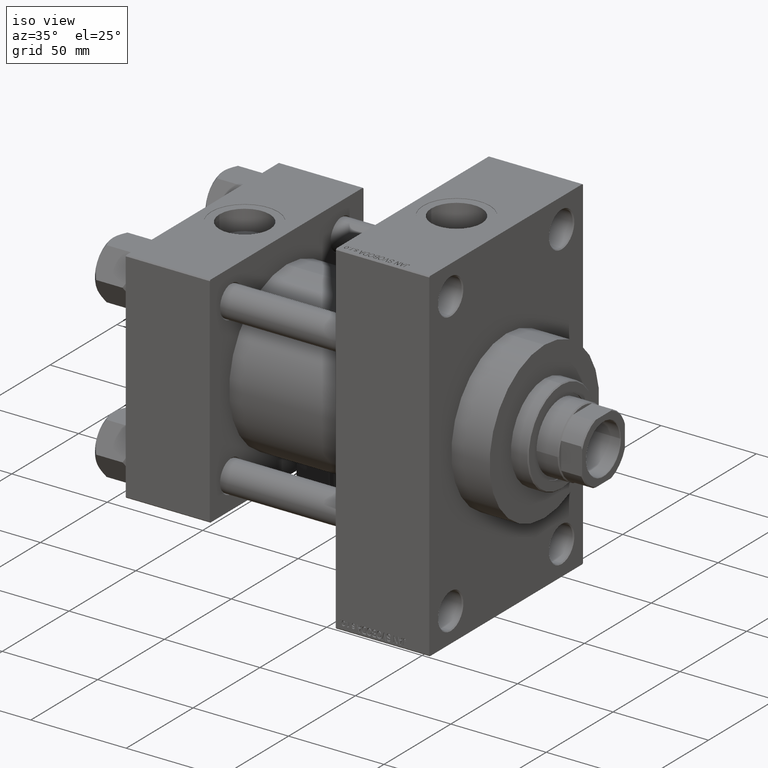
[diagram: clean part render]
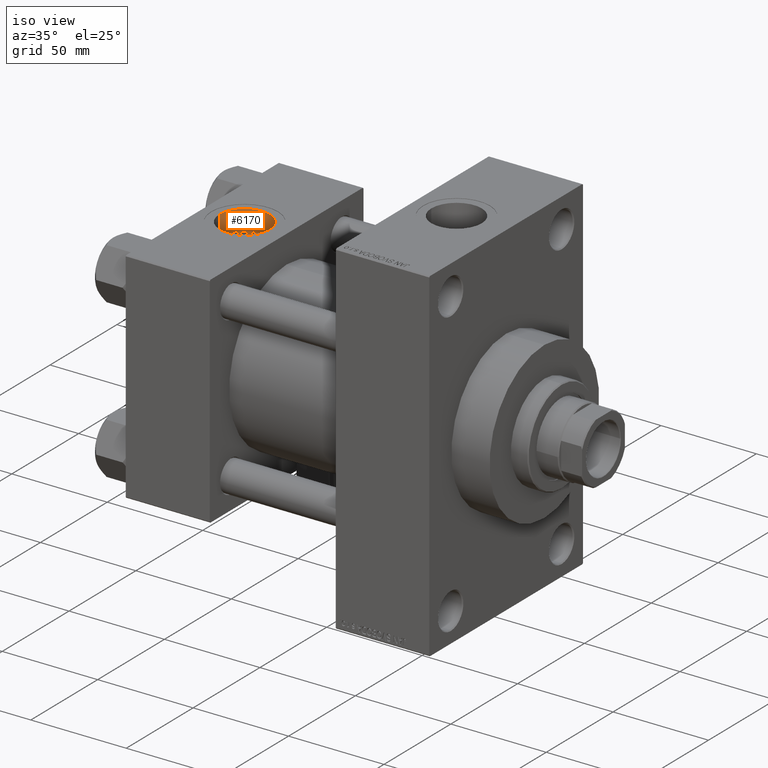
[diagram: same view with one face highlighted and labeled with its STEP entity id]
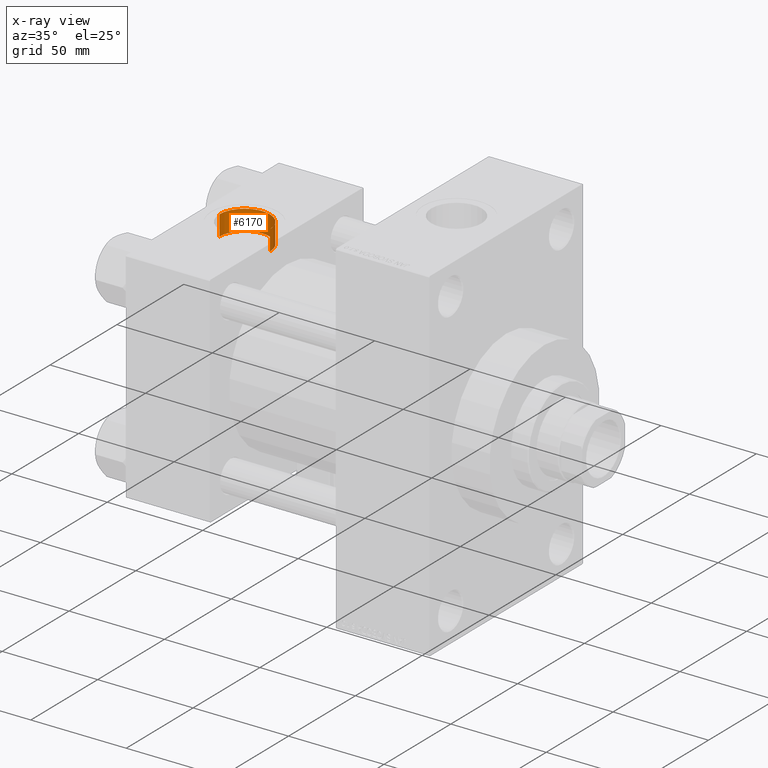
[diagram: x-ray of the same camera — body ghosted, the highlighted face saturated]
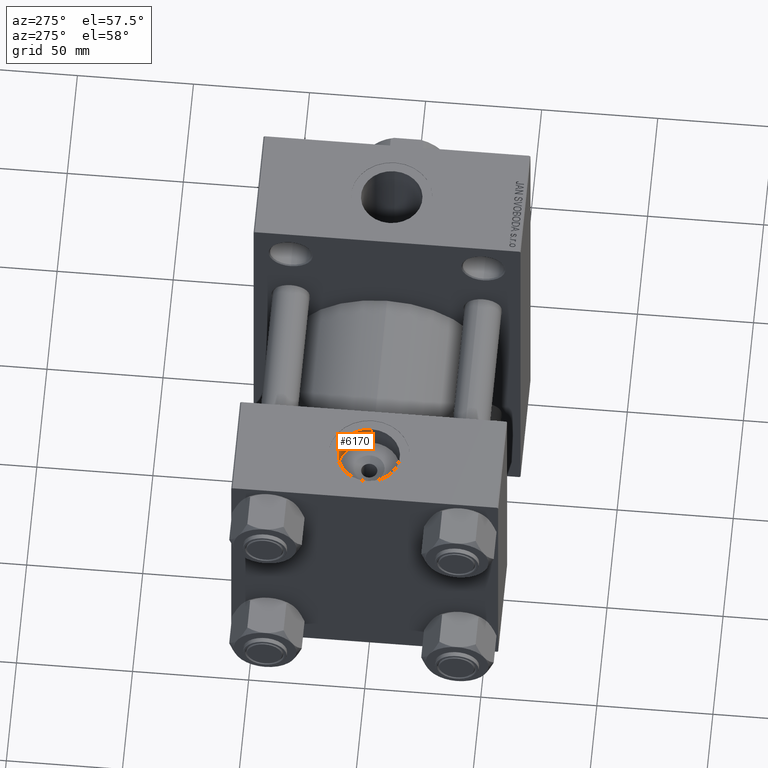
[diagram: same view with one face highlighted and labeled with its STEP entity id]
A machine part, iso view. The second image highlights one B-rep face of the part: STEP entity #6170.
The next image is the same camera in x-ray: the body ghosted, the highlighted face saturated — about 0% of this face is hidden behind the body in this view.
A second angle (auxiliary view) of the same face is appended — the face is thin or edge-on in the first view.
In plain terms, the highlighted cylindrical surface (edge-blend (fillet) strip) has radius 13.22 mm, axis along (0, 0, 1).
Its self-contained STEP definition (entity closure, byte-faithful):
#910 = DIRECTION ( 'NONE',  ( -0.000000000000000000, -0.000000000000000000, 1.000000000000000000 ) ) ;
#4264 = CARTESIAN_POINT ( 'NONE',  ( 22.00000000000000000, -8.673617379884035472E-15, 46.70000000000000284 ) ) ;
#5011 = FACE_OUTER_BOUND ( 'NONE', #48478, .T. ) ;
#5195 = LINE ( 'NONE', #35709, #39532 ) ;
#5260 = DIRECTION ( 'NONE',  ( -0.000000000000000000, -0.000000000000000000, 1.000000000000000000 ) ) ;
#5772 = CYLINDRICAL_SURFACE ( 'NONE', #39141, 13.22000000000000242 ) ;
#6170 = ADVANCED_FACE ( 'NONE', ( #5011 ), #5772, .F. ) ;
#7314 = DIRECTION ( 'NONE',  ( 1.000000000000000000, 0.000000000000000000, 0.000000000000000000 ) ) ;
#9356 = CARTESIAN_POINT ( 'NONE',  ( 8.779999999999994031, -7.054634311411234321E-15, 57.30000000000000426 ) ) ;
#9732 = CIRCLE ( 'NONE', #12840, 13.22000000000000242 ) ;
#11857 = AXIS2_PLACEMENT_3D ( 'NONE', #4264, #22938, #15615 ) ;
#12590 = EDGE_CURVE ( 'NONE', #14276, #42667, #19927, .T. ) ;
#12840 = AXIS2_PLACEMENT_3D ( 'NONE', #26498, #41839, #7314 ) ;
#14276 = VERTEX_POINT ( 'NONE', #34371 ) ;
#15615 = DIRECTION ( 'NONE',  ( 1.000000000000000000, 0.000000000000000000, 0.000000000000000000 ) ) ;
#17393 = DIRECTION ( 'NONE',  ( -0.000000000000000000, -0.000000000000000000, 1.000000000000000000 ) ) ;
#19927 = CIRCLE ( 'NONE', #11857, 13.22000000000000242 ) ;
#20132 = EDGE_CURVE ( 'NONE', #26640, #33808, #9732, .T. ) ;
#21355 = ORIENTED_EDGE ( 'NONE', *, *, #30160, .T. ) ;
#22938 = DIRECTION ( 'NONE',  ( 0.000000000000000000, 0.000000000000000000, 1.000000000000000000 ) ) ;
#26498 = CARTESIAN_POINT ( 'NONE',  ( 22.00000000000000000, -8.673617379884035472E-15, 57.30000000000000426 ) ) ;
#26640 = VERTEX_POINT ( 'NONE', #28436 ) ;
#28107 = ORIENTED_EDGE ( 'NONE', *, *, #12590, .F. ) ;
#28436 = CARTESIAN_POINT ( 'NONE',  ( 35.21999999999999886, -8.673617379884035472E-15, 57.30000000000000426 ) ) ;
#28982 = DIRECTION ( 'NONE',  ( 1.000000000000000000, 0.000000000000000000, 0.000000000000000000 ) ) ;
#29799 = ORIENTED_EDGE ( 'NONE', *, *, #34171, .F. ) ;
#30160 = EDGE_CURVE ( 'NONE', #14276, #26640, #44087, .T. ) ;
#32030 = CARTESIAN_POINT ( 'NONE',  ( 35.21999999999999886, -8.673617379884035472E-15, 46.70000000000000284 ) ) ;
#32256 = CARTESIAN_POINT ( 'NONE',  ( 22.00000000000000000, -8.673617379884035472E-15, 46.70000000000000284 ) ) ;
#33240 = CARTESIAN_POINT ( 'NONE',  ( 8.779999999999994031, -7.054634311411234321E-15, 46.70000000000000284 ) ) ;
#33808 = VERTEX_POINT ( 'NONE', #9356 ) ;
#34171 = EDGE_CURVE ( 'NONE', #42667, #33808, #5195, .T. ) ;
#34371 = CARTESIAN_POINT ( 'NONE',  ( 35.21999999999999886, -8.673617379884035472E-15, 46.70000000000000284 ) ) ;
#35709 = CARTESIAN_POINT ( 'NONE',  ( 8.779999999999994031, -7.054634311411234321E-15, 46.70000000000000284 ) ) ;
#36971 = VECTOR ( 'NONE', #17393, 1000.000000000000000 ) ;
#39141 = AXIS2_PLACEMENT_3D ( 'NONE', #32256, #5260, #28982 ) ;
#39532 = VECTOR ( 'NONE', #910, 1000.000000000000000 ) ;
#39780 = ORIENTED_EDGE ( 'NONE', *, *, #20132, .T. ) ;
#41839 = DIRECTION ( 'NONE',  ( 0.000000000000000000, 0.000000000000000000, 1.000000000000000000 ) ) ;
#42667 = VERTEX_POINT ( 'NONE', #33240 ) ;
#44087 = LINE ( 'NONE', #32030, #36971 ) ;
#48478 = EDGE_LOOP ( 'NONE', ( #29799, #28107, #21355, #39780 ) ) ;